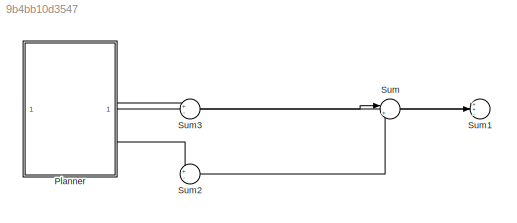
MODEL slx_9b4bb10d3547
KIND model
CONFIG AbsTol = auto
CONFIG EnableMultiTasking = off
CONFIG FixedStep = auto
CONFIG MaxStep = auto
CONFIG MinStep = auto
CONFIG RelTol = 1e-3
CONFIG SampleTimeConstraint = Unconstrained
CONFIG SolverName = VariableStepAuto
CONFIG StartTime = 0.0
CONFIG StopTime = 10.0
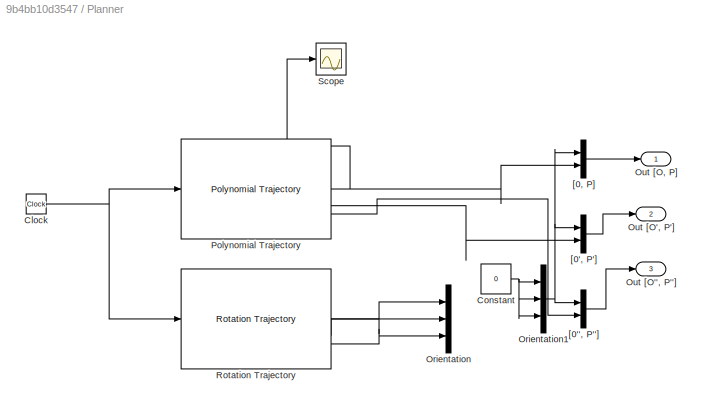
BLOCK [SubSystem] Planner
BLOCK [Clock] Planner/Clock
BLOCK [Constant] Planner/Constant
  Value = 0
BLOCK [Mux] Planner/Orientation
  DisplayOption = bar
  Inputs = 3
BLOCK [Mux] Planner/Orientation1
  DisplayOption = bar
  Inputs = 3
BLOCK [Outport] Planner/Out [O'', P'']
  Port = 3
BLOCK [Outport] Planner/Out [O', P']
  Port = 2
BLOCK [Outport] Planner/Out [O, P]
BLOCK [Reference] Planner/Polynomial Trajectory  REF=robotcorelib/Polynomial Trajectory
  LibrarySourceBlock = robotutilslib/Polynomial Trajectory
  SourceBlock = robotcorelib/Polynomial Trajectory
  SourceType = robotics.slcore.internal.block.PolyTrajSys
BLOCK [Reference] Planner/Rotation Trajectory  REF=robotcorelib/Rotation Trajectory
  LibrarySourceBlock = robotutilslib/Rotation Trajectory
  SourceBlock = robotcorelib/Rotation Trajectory
  SourceType = robotics.slcore.internal.block.RotTrajSys
BLOCK [Scope] Planner/Scope
  Floating = off
  NumInputPorts = 1
  ScopeSpecificationString = Simulink.scopes.TimeScopeBlockCfg('CurrentConfiguration', extmgr.ConfigurationSet(extmgr.Configuration('Core','General UI',true),extmgr.Configuration('Core','Source UI',true),extmgr.Configuration('Sources','WiredSimulink',true),extmgr.Configuration('Visuals','Time Domain',true,'SerializedDisplays',{struct('MinYLimReal','0.75','MaxYLimReal','3.25','YLabelReal','','MinYLimMag','0.75','MaxYLimMag','3...<+1404ch>
BLOCK [Mux] Planner/[0'', P'']
  DisplayOption = bar
  Inputs = 2
BLOCK [Mux] Planner/[0', P']
  DisplayOption = bar
  Inputs = 2
BLOCK [Mux] Planner/[0, P]
  DisplayOption = bar
  Inputs = 2
BLOCK [Sum] Sum
  Inputs = |++
BLOCK [Sum] Sum1
  Inputs = ++-
BLOCK [Sum] Sum2
  Inputs = +-
BLOCK [Sum] Sum3
  Inputs = +-
NET Planner/Clock:1 -> Planner/Polynomial Trajectory:1, Planner/Rotation Trajectory:1
NET Planner/Constant:1 -> Planner/Orientation1:1, Planner/Orientation1:2, Planner/Orientation1:3
NET Planner/Orientation1:1 -> Planner/[0'', P'']:1, Planner/[0', P']:1, Planner/[0, P]:1
NET Planner/Polynomial Trajectory:1 -> Planner/Scope:1, Planner/[0, P]:2
LINE Planner/Polynomial Trajectory:2 -> Planner/[0', P']:2
LINE Planner/Polynomial Trajectory:3 -> Planner/[0'', P'']:2
LINE Planner/Rotation Trajectory:1 -> Planner/Orientation:1
LINE Planner/Rotation Trajectory:2 -> Planner/Orientation:2
LINE Planner/Rotation Trajectory:3 -> Planner/Orientation:3
LINE Planner/[0'', P'']:1 -> Planner/Out [O'', P'']:1
LINE Planner/[0', P']:1 -> Planner/Out [O', P']:1
LINE Planner/[0, P]:1 -> Planner/Out [O, P]:1
LINE Planner:1 -> Sum1:1
LINE Planner:2 -> Sum3:1
LINE Planner:3 -> Sum2:1
LINE Sum2:1 -> Sum:2
LINE Sum3:1 -> Sum:1
LINE Sum:1 -> Sum1:2
note: NET lines group one-source signal fan-out (src -> all destinations, sorted); 1:1 wires keep LINE
